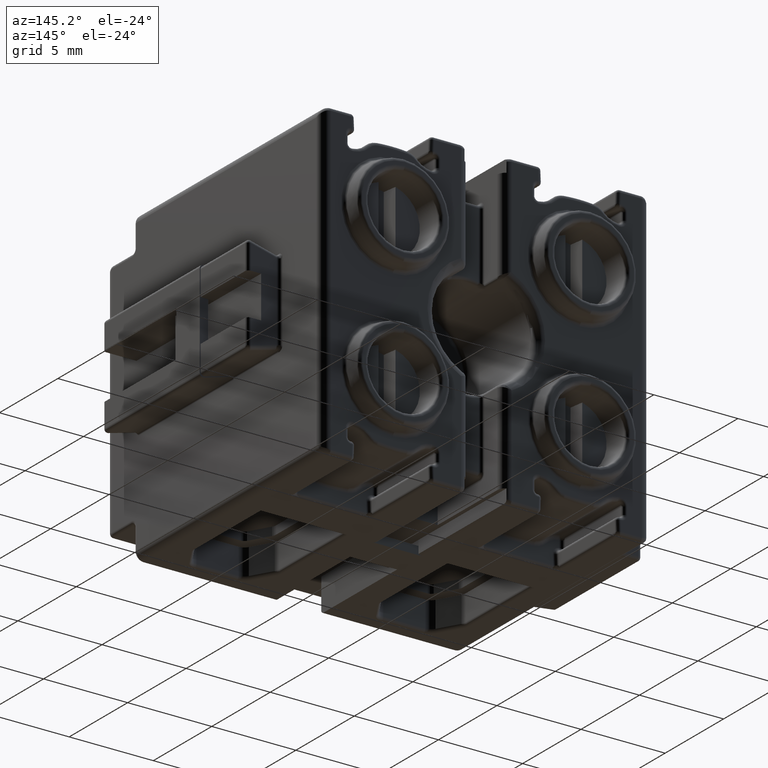
[diagram: clean part render]
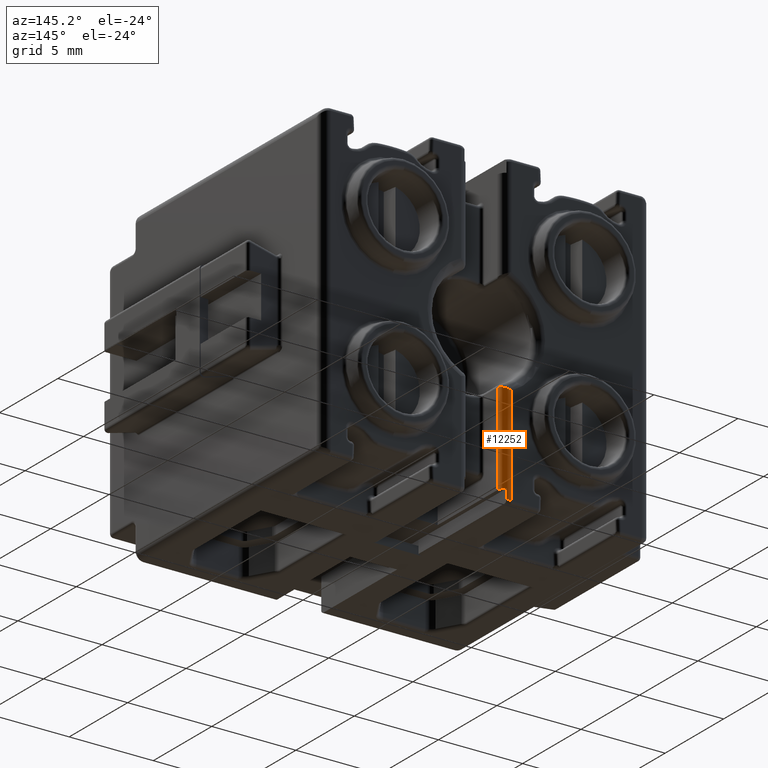
[diagram: same view with one face highlighted and labeled with its STEP entity id]
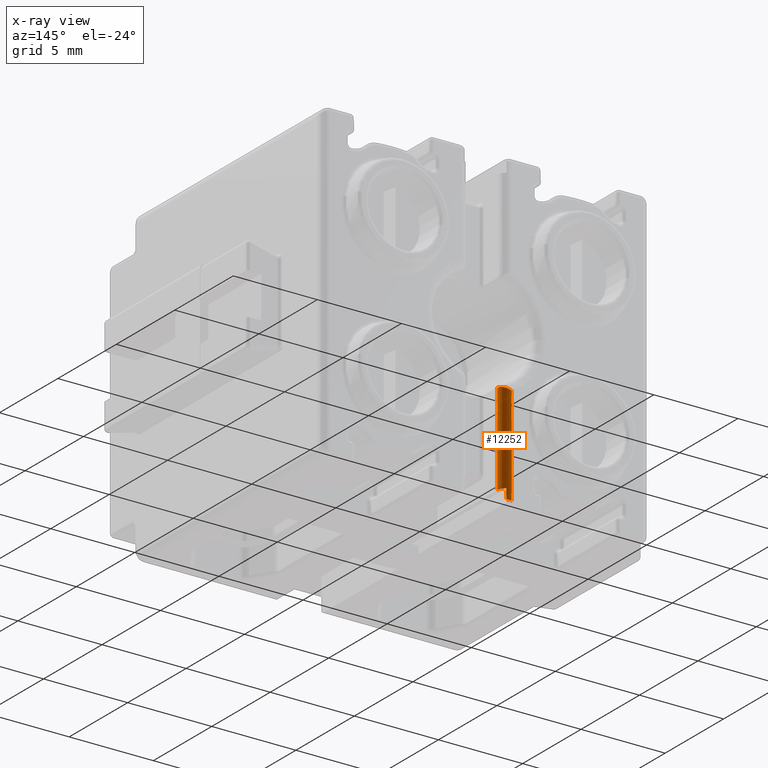
[diagram: x-ray of the same camera — body ghosted, the highlighted face saturated]
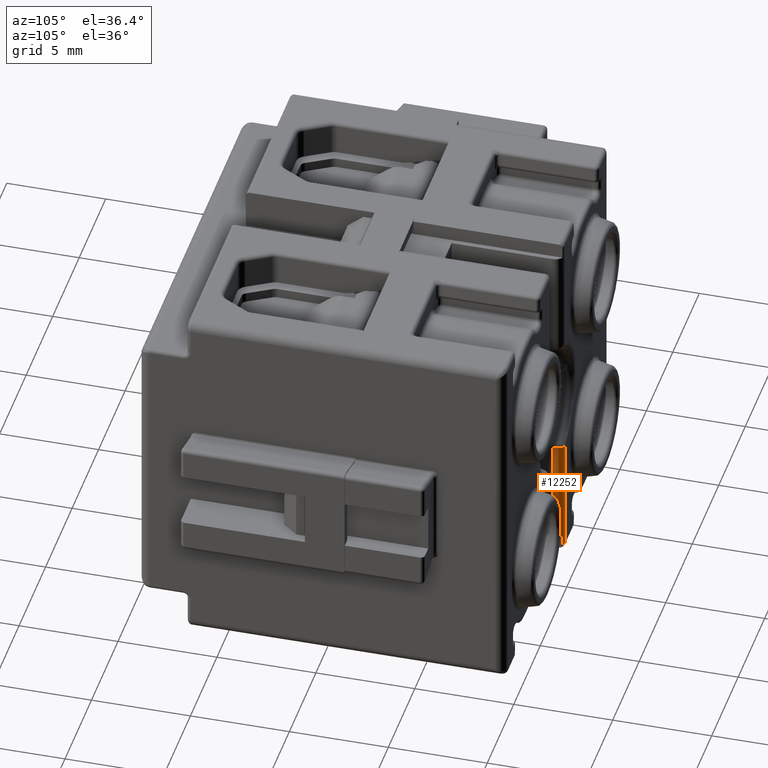
[diagram: same view with one face highlighted and labeled with its STEP entity id]
A machine part, auxiliary view. The second image highlights one B-rep face of the part: STEP entity #12252.
The next image is the same camera in x-ray: the body ghosted, the highlighted face saturated — about 0% of this face is hidden behind the body in this view.
A second angle (auxiliary view) of the same face is appended — the face is thin or edge-on in the first view.
In plain terms, the highlighted cylindrical surface (edge-blend (fillet) strip) has radius 0.5 mm, axis along (0, 0, 1).
Its self-contained STEP definition (entity closure, byte-faithful):
#1276 = EDGE_LOOP ( 'NONE', ( #15947, #15942, #15966, #15956, #15938, #15930 ) ) ;
#6286 = VERTEX_POINT ( 'NONE', #8616 ) ;
#6339 = VERTEX_POINT ( 'NONE', #8675 ) ;
#6353 = VERTEX_POINT ( 'NONE', #8676 ) ;
#6366 = VERTEX_POINT ( 'NONE', #8644 ) ;
#6380 = VERTEX_POINT ( 'NONE', #8682 ) ;
#6396 = VERTEX_POINT ( 'NONE', #8659 ) ;
#8616 = CARTESIAN_POINT ( 'NONE',  ( 8.006555369887841800, 43.74973753280829700, -18.60451159725455000 ) ) ;
#8644 = CARTESIAN_POINT ( 'NONE',  ( 8.006555369887841800, 43.74973753280829700, -13.13931741445340000 ) ) ;
#8659 = CARTESIAN_POINT ( 'NONE',  ( 7.506555369887840000, 44.24973753280829700, -13.33511567978350100 ) ) ;
#8675 = CARTESIAN_POINT ( 'NONE',  ( 7.506555369887840000, 44.24973753280829700, -19.22283801961510000 ) ) ;
#8676 = CARTESIAN_POINT ( 'NONE',  ( 7.756555369887840000, 44.18275023470049900, -19.18264564075044700 ) ) ;
#8682 = CARTESIAN_POINT ( 'NONE',  ( 7.756555369887840000, 44.18275023470049900, -18.60451159725455000 ) ) ;
#10185 = DIRECTION ( 'NONE',  ( 1.000000000000000000, 0.0000000000000000000, 0.0000000000000000000 ) ) ;
#10191 = CARTESIAN_POINT ( 'NONE',  ( 7.506555369887840000, 43.74973753280829700, -10.17283801961512100 ) ) ;
#10198 = FACE_OUTER_BOUND ( 'NONE', #1276, .T. ) ;
#10200 = DIRECTION ( 'NONE',  ( 0.0000000000000000000, 0.0000000000000000000, 1.000000000000000000 ) ) ;
#10205 = CYLINDRICAL_SURFACE ( 'NONE', #17439, 0.4999999999999995600 ) ;
#11197 = EDGE_CURVE ( 'NONE', #6353, #6380, #25389, .T. ) ;
#11221 = EDGE_CURVE ( 'NONE', #6286, #6380, #15526, .T. ) ;
#11228 = EDGE_CURVE ( 'NONE', #6353, #6339, #27851, .T. ) ;
#11238 = EDGE_CURVE ( 'NONE', #6396, #6366, #17023, .T. ) ;
#11241 = EDGE_CURVE ( 'NONE', #6396, #6339, #25504, .T. ) ;
#11249 = EDGE_CURVE ( 'NONE', #6286, #6366, #25503, .T. ) ;
#12252 = ADVANCED_FACE ( 'NONE', ( #10198 ), #10205, .T. ) ;
#15526 = CIRCLE ( 'NONE', #15531, 0.4999999999999995600 ) ;
#15531 = AXIS2_PLACEMENT_3D ( 'NONE', #25479, #25463, #25441 ) ;
#15548 = VECTOR ( 'NONE', #25358, 1000.000000000000000 ) ;
#15590 = VECTOR ( 'NONE', #25505, 1000.000000000000000 ) ;
#15593 = VECTOR ( 'NONE', #25533, 1000.000000000000000 ) ;
#15930 = ORIENTED_EDGE ( 'NONE', *, *, #11228, .T. ) ;
#15938 = ORIENTED_EDGE ( 'NONE', *, *, #11197, .F. ) ;
#15942 = ORIENTED_EDGE ( 'NONE', *, *, #11238, .T. ) ;
#15947 = ORIENTED_EDGE ( 'NONE', *, *, #11241, .F. ) ;
#15956 = ORIENTED_EDGE ( 'NONE', *, *, #11221, .T. ) ;
#15966 = ORIENTED_EDGE ( 'NONE', *, *, #11249, .F. ) ;
#17023 = B_SPLINE_CURVE_WITH_KNOTS ( 'NONE', 3,
 ( #25484, #25514, #25485, #25512, #25524, #25491 ),
 .UNSPECIFIED., .F., .F.,
 ( 4, 2, 4 ),
 ( -4.634629218731548900E-006, 0.0004050539214610405000, 0.0008147424721408106300 ),
 .UNSPECIFIED. ) ;
#17439 = AXIS2_PLACEMENT_3D ( 'NONE', #10191, #10200, #10185 ) ;
#25358 = DIRECTION ( 'NONE',  ( 0.0000000000000000000, 0.0000000000000000000, 1.000000000000000000 ) ) ;
#25370 = CARTESIAN_POINT ( 'NONE',  ( 7.756555369887840000, 44.18275023470049900, -10.17283801961512100 ) ) ;
#25389 = LINE ( 'NONE', #25370, #15548 ) ;
#25438 = CARTESIAN_POINT ( 'NONE',  ( 7.594833726289306400, 44.24973753280829700, -19.22283801961510000 ) ) ;
#25441 = DIRECTION ( 'NONE',  ( -1.000000000000000000, 1.387778780781446900E-014, 0.0000000000000000000 ) ) ;
#25448 = CARTESIAN_POINT ( 'NONE',  ( 7.506555369887840000, 44.24973753280829700, -19.22283801961510000 ) ) ;
#25463 = DIRECTION ( 'NONE',  ( -0.0000000000000000000, -0.0000000000000000000, 1.000000000000000000 ) ) ;
#25464 = CARTESIAN_POINT ( 'NONE',  ( 7.680104070639833600, 44.22688941290125100, -19.20912914767087900 ) ) ;
#25479 = CARTESIAN_POINT ( 'NONE',  ( 7.506555369887840000, 43.74973753280829700, -18.60451159725455000 ) ) ;
#25483 = CARTESIAN_POINT ( 'NONE',  ( 7.756555369887840000, 44.18275023470049900, -19.18264564075044700 ) ) ;
#25484 = CARTESIAN_POINT ( 'NONE',  ( 7.506555369887840000, 44.24973753280829700, -13.33511567978350100 ) ) ;
#25485 = CARTESIAN_POINT ( 'NONE',  ( 7.760150196930360300, 44.20001707202718700, -13.23759870889279700 ) ) ;
#25491 = CARTESIAN_POINT ( 'NONE',  ( 8.006555369887841800, 43.74973753280829700, -13.13931741445340000 ) ) ;
#25494 = CARTESIAN_POINT ( 'NONE',  ( 7.506555369887840000, 44.24973753280829700, -19.42283801961509900 ) ) ;
#25503 = LINE ( 'NONE', #25520, #15593 ) ;
#25504 = LINE ( 'NONE', #25494, #15590 ) ;
#25505 = DIRECTION ( 'NONE',  ( 0.0000000000000000000, 0.0000000000000000000, -1.000000000000000000 ) ) ;
#25512 = CARTESIAN_POINT ( 'NONE',  ( 7.947981335778550300, 44.01844763008667600, -13.16314960025455600 ) ) ;
#25514 = CARTESIAN_POINT ( 'NONE',  ( 7.634231262537490200, 44.24973753280829700, -13.28665348265792000 ) ) ;
#25520 = CARTESIAN_POINT ( 'NONE',  ( 8.006555369887841800, 43.74973753280829700, -13.00126514436129800 ) ) ;
#25524 = CARTESIAN_POINT ( 'NONE',  ( 8.006555369887843600, 43.88655607180064800, -13.13931741445340200 ) ) ;
#25533 = DIRECTION ( 'NONE',  ( -0.0000000000000000000, -0.0000000000000000000, 1.000000000000000000 ) ) ;
#27851 =( BOUNDED_CURVE ( )  B_SPLINE_CURVE ( 3, ( #25483, #25464, #25438, #25448 ),
 .UNSPECIFIED., .F., .T. ) 
 B_SPLINE_CURVE_WITH_KNOTS ( ( 4, 4 ),
 ( 2.617993877991494000, 3.141592653589793100 ),
 .UNSPECIFIED. ) 
 CURVE ( )  GEOMETRIC_REPRESENTATION_ITEM ( )  RATIONAL_B_SPLINE_CURVE ( ( 1.000000000000000000, 0.9772838841927120600, 0.9772838841927120600, 1.000000000000000000 ) ) 
 REPRESENTATION_ITEM ( '' )  );